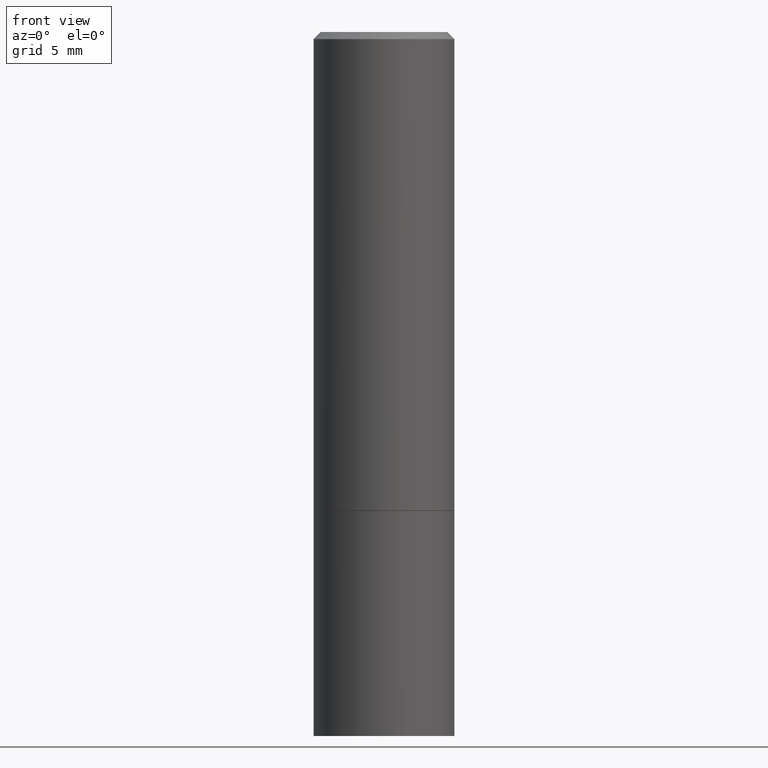
[diagram: clean part render]
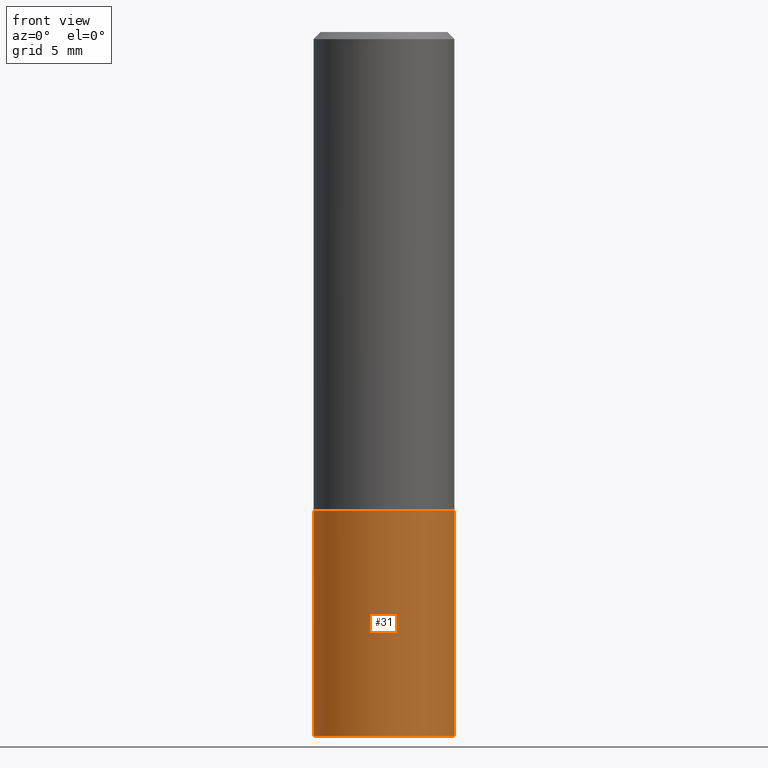
[diagram: same view with one face highlighted and labeled with its STEP entity id]
A machine part, front view. The second image highlights one B-rep face of the part: STEP entity #31.
In plain terms, the highlighted cylindrical surface (partial cylindrical patch) has radius 5 mm, axis along (-0, 0, 1).
Its self-contained STEP definition (entity closure, byte-faithful):
#15 = VECTOR ( 'NONE', #240, 39.37007874015748143 ) ;
#21 = CYLINDRICAL_SURFACE ( 'NONE', #81, 0.1968500000000000250 ) ;
#22 = CARTESIAN_POINT ( 'NONE',  ( 4.813905344975441835E-29, -6.872981015512731707E-15, -1.968500000000000139 ) ) ;
#31 = ADVANCED_FACE ( 'NONE', ( #309 ), #21, .T. ) ;
#37 = DIRECTION ( 'NONE',  ( -2.445468806185136877E-29, 3.491481338843145188E-15, 1.000000000000000000 ) ) ;
#47 = AXIS2_PLACEMENT_3D ( 'NONE', #121, #349, #147 ) ;
#62 = EDGE_LOOP ( 'NONE', ( #318, #122, #243, #172 ) ) ;
#69 = EDGE_CURVE ( 'NONE', #192, #256, #328, .T. ) ;
#75 = CARTESIAN_POINT ( 'NONE',  ( 0.1968500000000000250, -8.247577218615273316E-15, -1.968500000000000139 ) ) ;
#78 = CARTESIAN_POINT ( 'NONE',  ( 0.1968500000000000250, -6.048293123277976345E-15, -1.338600000000000012 ) ) ;
#81 = AXIS2_PLACEMENT_3D ( 'NONE', #166, #285, #145 ) ;
#92 = CARTESIAN_POINT ( 'NONE',  ( -0.1968500000000000250, -4.374635592500326618E-15, -1.968500000000000139 ) ) ;
#98 = LINE ( 'NONE', #123, #15 ) ;
#121 = CARTESIAN_POINT ( 'NONE',  ( 3.273504543959423913E-29, -4.673696920175434737E-15, -1.338600000000000012 ) ) ;
#122 = ORIENTED_EDGE ( 'NONE', *, *, #69, .T. ) ;
#123 = CARTESIAN_POINT ( 'NONE',  ( -0.1968500000000000250, 1.398703375343757393E-15, -9.682923725166783677E-30 ) ) ;
#144 = DIRECTION ( 'NONE',  ( -2.445468806185136597E-29, 3.491481338843145583E-15, 1.000000000000000000 ) ) ;
#145 = DIRECTION ( 'NONE',  ( 1.000000000000000000, -6.982962677686265922E-15, 4.876176775795935793E-29 ) ) ;
#147 = DIRECTION ( 'NONE',  ( 1.000000000000000000, -6.982962677686267499E-15, 0.000000000000000000 ) ) ;
#158 = EDGE_CURVE ( 'NONE', #256, #251, #264, .T. ) ;
#166 = CARTESIAN_POINT ( 'NONE',  ( 0.000000000000000000, 0.000000000000000000, 0.000000000000000000 ) ) ;
#172 = ORIENTED_EDGE ( 'NONE', *, *, #178, .F. ) ;
#178 = EDGE_CURVE ( 'NONE', #365, #251, #257, .T. ) ;
#187 = AXIS2_PLACEMENT_3D ( 'NONE', #22, #144, #260 ) ;
#192 = VERTEX_POINT ( 'NONE', #92 ) ;
#225 = EDGE_CURVE ( 'NONE', #192, #365, #98, .T. ) ;
#235 = CARTESIAN_POINT ( 'NONE',  ( -0.1968500000000000250, -4.374635592500326618E-15, -1.338600000000000012 ) ) ;
#240 = DIRECTION ( 'NONE',  ( -2.445468806185136877E-29, 3.491481338843145188E-15, 1.000000000000000000 ) ) ;
#243 = ORIENTED_EDGE ( 'NONE', *, *, #158, .T. ) ;
#251 = VERTEX_POINT ( 'NONE', #78 ) ;
#256 = VERTEX_POINT ( 'NONE', #75 ) ;
#257 = CIRCLE ( 'NONE', #47, 0.1968500000000000250 ) ;
#260 = DIRECTION ( 'NONE',  ( 1.000000000000000000, -6.982962677686267499E-15, 0.000000000000000000 ) ) ;
#264 = LINE ( 'NONE', #313, #332 ) ;
#285 = DIRECTION ( 'NONE',  ( -2.445468806185136597E-29, 3.491481338843145583E-15, 1.000000000000000000 ) ) ;
#309 = FACE_OUTER_BOUND ( 'NONE', #62, .T. ) ;
#313 = CARTESIAN_POINT ( 'NONE',  ( 0.1968500000000000250, -1.374596203102541608E-15, 9.598753983154300858E-30 ) ) ;
#318 = ORIENTED_EDGE ( 'NONE', *, *, #225, .F. ) ;
#328 = CIRCLE ( 'NONE', #187, 0.1968500000000000250 ) ;
#332 = VECTOR ( 'NONE', #37, 39.37007874015748143 ) ;
#349 = DIRECTION ( 'NONE',  ( -2.445468806185136597E-29, 3.491481338843145583E-15, 1.000000000000000000 ) ) ;
#365 = VERTEX_POINT ( 'NONE', #235 ) ;